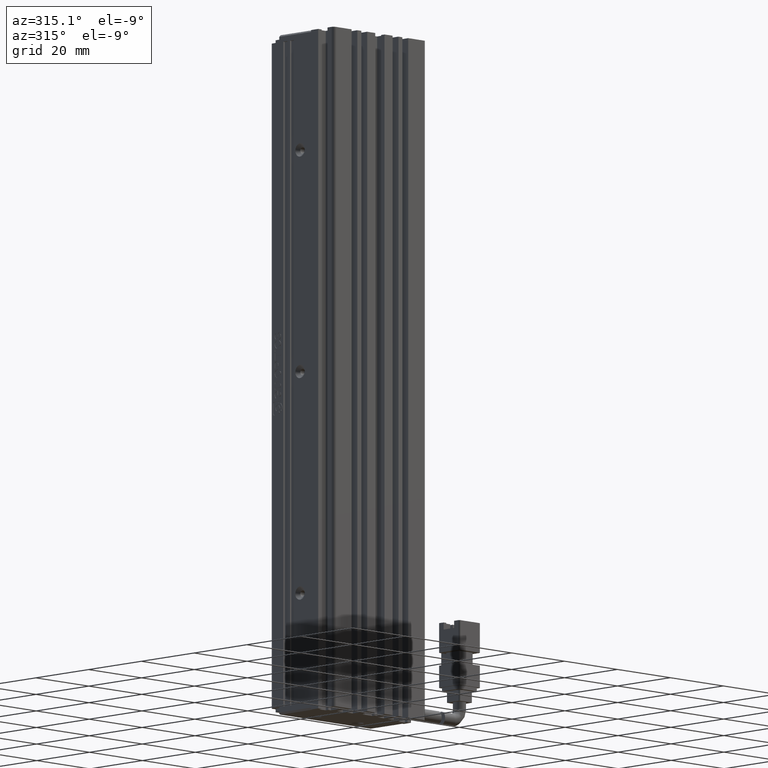
[diagram: clean part render]
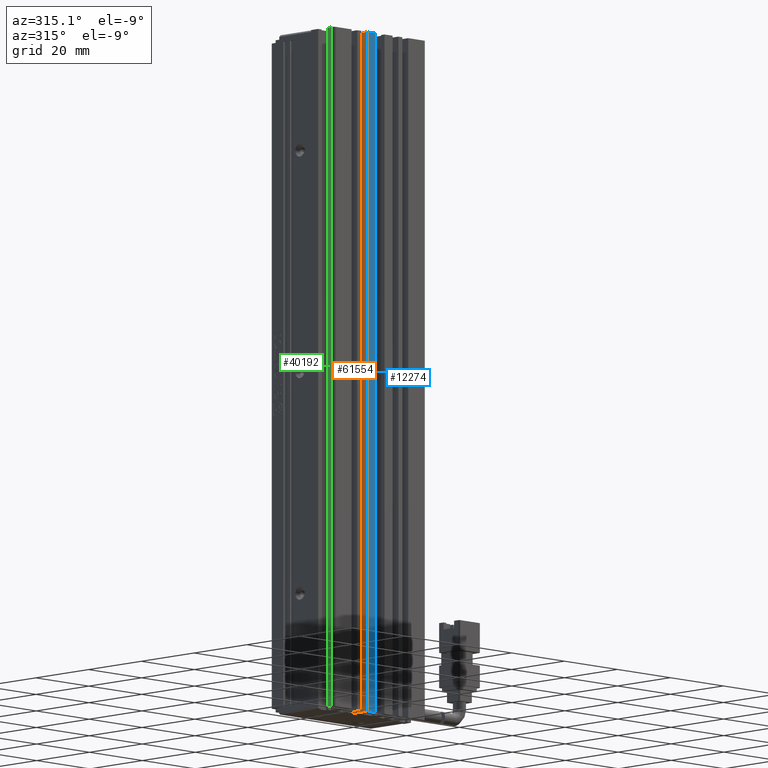
[diagram: same view with three faces highlighted in distinct colors, each labeled with its STEP entity id]
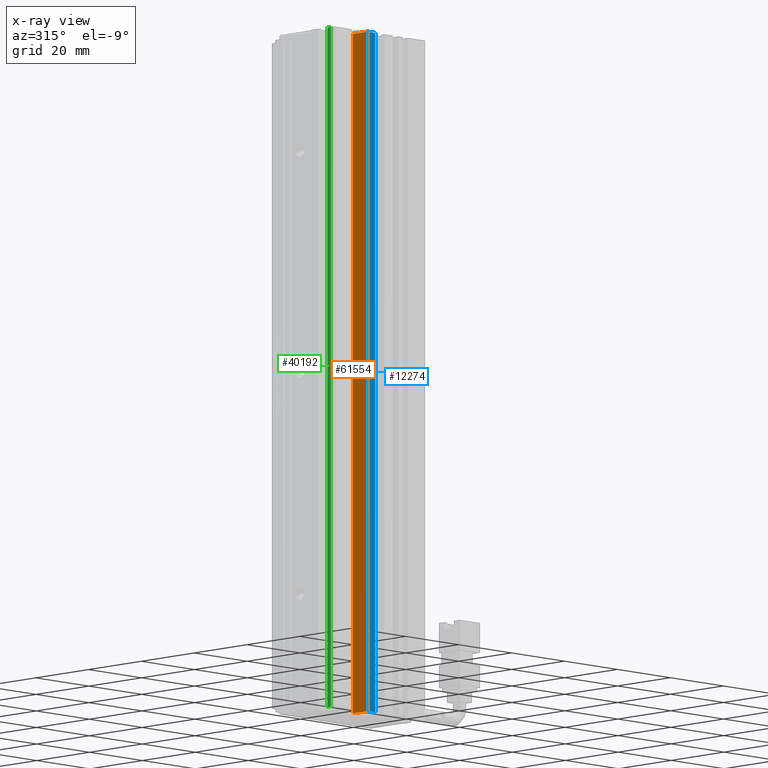
[diagram: x-ray of the same camera — body ghosted, the three highlighted faces saturated]
A machine part, auxiliary view with three faces highlighted in distinct colors.
The next image is the same camera in x-ray (body ghosted, the three faces saturated) — at least one of them is partly hidden behind the body in this view.
Their STEP definitions:

[orange] entity #61554 — the highlighted planar face has unit normal (-1, 0, 0).
#141 = CARTESIAN_POINT ( 'NONE',  ( 36.12537974683543500, 7.083797468354437600, -207.0000000000000300 ) ) ;
#1987 = LINE ( 'NONE', #141, #68669 ) ;
#3112 = CARTESIAN_POINT ( 'NONE',  ( 36.12537974683543500, 10.99073232304837000, -207.0000000000000300 ) ) ;
#6096 = ORIENTED_EDGE ( 'NONE', *, *, #53703, .T. ) ;
#6238 = ORIENTED_EDGE ( 'NONE', *, *, #25941, .T. ) ;
#6867 = VERTEX_POINT ( 'NONE', #65173 ) ;
#7102 = FACE_OUTER_BOUND ( 'NONE', #9268, .T. ) ;
#9268 = EDGE_LOOP ( 'NONE', ( #37538, #6238, #6096, #34782 ) ) ;
#14650 = CARTESIAN_POINT ( 'NONE',  ( 36.12537974683543500, 7.083797468354437600, -23.00000000000000700 ) ) ;
#15229 = CARTESIAN_POINT ( 'NONE',  ( 36.12537974683543500, 16.49073232304837000, -23.00000000000000700 ) ) ;
#15911 = EDGE_CURVE ( 'NONE', #58105, #56391, #35394, .T. ) ;
#15985 = DIRECTION ( 'NONE',  ( 0.0000000000000000000, -0.0000000000000000000, -1.000000000000000000 ) ) ;
#16100 = DIRECTION ( 'NONE',  ( -1.000000000000000000, 0.0000000000000000000, 0.0000000000000000000 ) ) ;
#19131 = VECTOR ( 'NONE', #26913, 1000.000000000000000 ) ;
#23712 = VECTOR ( 'NONE', #15985, 1000.000000000000000 ) ;
#25941 = EDGE_CURVE ( 'NONE', #58105, #6867, #54297, .T. ) ;
#26913 = DIRECTION ( 'NONE',  ( -0.0000000000000000000, -1.000000000000000000, 0.0000000000000000000 ) ) ;
#28476 = CARTESIAN_POINT ( 'NONE',  ( 36.12537974683543500, 10.99073232304837000, -23.00000000000000700 ) ) ;
#30978 = CARTESIAN_POINT ( 'NONE',  ( 36.12537974683543500, 16.49073232304837000, -23.00000000000000700 ) ) ;
#34535 = PLANE ( 'NONE',  #41229 ) ;
#34782 = ORIENTED_EDGE ( 'NONE', *, *, #73462, .F. ) ;
#35394 = LINE ( 'NONE', #14650, #19131 ) ;
#37538 = ORIENTED_EDGE ( 'NONE', *, *, #15911, .F. ) ;
#38062 = LINE ( 'NONE', #65551, #23712 ) ;
#38130 = VECTOR ( 'NONE', #70113, 1000.000000000000000 ) ;
#40682 = CARTESIAN_POINT ( 'NONE',  ( 36.12537974683543500, 7.083797468354437600, -23.00000000000000700 ) ) ;
#41229 = AXIS2_PLACEMENT_3D ( 'NONE', #40682, #16100, #58743 ) ;
#43026 = VERTEX_POINT ( 'NONE', #3112 ) ;
#49627 = DIRECTION ( 'NONE',  ( -0.0000000000000000000, -1.000000000000000000, 0.0000000000000000000 ) ) ;
#53703 = EDGE_CURVE ( 'NONE', #6867, #43026, #1987, .T. ) ;
#54297 = LINE ( 'NONE', #15229, #38130 ) ;
#56391 = VERTEX_POINT ( 'NONE', #28476 ) ;
#58105 = VERTEX_POINT ( 'NONE', #30978 ) ;
#58743 = DIRECTION ( 'NONE',  ( 0.0000000000000000000, 0.0000000000000000000, 1.000000000000000000 ) ) ;
#61554 = ADVANCED_FACE ( 'NONE', ( #7102 ), #34535, .T. ) ;
#65173 = CARTESIAN_POINT ( 'NONE',  ( 36.12537974683543500, 16.49073232304837000, -207.0000000000000300 ) ) ;
#65551 = CARTESIAN_POINT ( 'NONE',  ( 36.12537974683543500, 10.99073232304837000, -23.00000000000000700 ) ) ;
#68669 = VECTOR ( 'NONE', #49627, 1000.000000000000000 ) ;
#70113 = DIRECTION ( 'NONE',  ( -0.0000000000000000000, -0.0000000000000000000, -1.000000000000000000 ) ) ;
#73462 = EDGE_CURVE ( 'NONE', #56391, #43026, #38062, .T. ) ;

[blue] entity #12274 — the highlighted planar face has unit normal (0, -1, 0).
#1162 = EDGE_CURVE ( 'NONE', #65183, #12018, #78027, .T. ) ;
#2547 = ORIENTED_EDGE ( 'NONE', *, *, #1162, .T. ) ;
#3112 = CARTESIAN_POINT ( 'NONE',  ( 36.12537974683543500, 10.99073232304837000, -207.0000000000000300 ) ) ;
#6153 = VECTOR ( 'NONE', #36179, 1000.000000000000000 ) ;
#12018 = VERTEX_POINT ( 'NONE', #19708 ) ;
#12274 = ADVANCED_FACE ( 'NONE', ( #31183 ), #53345, .T. ) ;
#14853 = EDGE_LOOP ( 'NONE', ( #41390, #76842, #78434, #2547 ) ) ;
#15985 = DIRECTION ( 'NONE',  ( 0.0000000000000000000, -0.0000000000000000000, -1.000000000000000000 ) ) ;
#19708 = CARTESIAN_POINT ( 'NONE',  ( 39.17537974683542500, 10.99073232304837000, -23.00000000000000700 ) ) ;
#20538 = EDGE_CURVE ( 'NONE', #43026, #65183, #67113, .T. ) ;
#23712 = VECTOR ( 'NONE', #15985, 1000.000000000000000 ) ;
#27316 = CARTESIAN_POINT ( 'NONE',  ( 39.17537974683542500, 10.99073232304837000, -23.00000000000000700 ) ) ;
#28476 = CARTESIAN_POINT ( 'NONE',  ( 36.12537974683543500, 10.99073232304837000, -23.00000000000000700 ) ) ;
#31183 = FACE_OUTER_BOUND ( 'NONE', #14853, .T. ) ;
#33649 = DIRECTION ( 'NONE',  ( -0.0000000000000000000, 0.0000000000000000000, 1.000000000000000000 ) ) ;
#35249 = VECTOR ( 'NONE', #33649, 1000.000000000000000 ) ;
#35429 = AXIS2_PLACEMENT_3D ( 'NONE', #41102, #71684, #35781 ) ;
#35781 = DIRECTION ( 'NONE',  ( 0.0000000000000000000, -0.0000000000000000000, -1.000000000000000000 ) ) ;
#36179 = DIRECTION ( 'NONE',  ( 1.000000000000000000, 0.0000000000000000000, 0.0000000000000000000 ) ) ;
#38062 = LINE ( 'NONE', #65551, #23712 ) ;
#38842 = DIRECTION ( 'NONE',  ( 1.000000000000000000, 0.0000000000000000000, 0.0000000000000000000 ) ) ;
#41102 = CARTESIAN_POINT ( 'NONE',  ( 40.92537974683542500, 10.99073232304837000, -23.00000000000000700 ) ) ;
#41390 = ORIENTED_EDGE ( 'NONE', *, *, #59778, .F. ) ;
#43026 = VERTEX_POINT ( 'NONE', #3112 ) ;
#45234 = LINE ( 'NONE', #68862, #77580 ) ;
#53345 = PLANE ( 'NONE',  #35429 ) ;
#56391 = VERTEX_POINT ( 'NONE', #28476 ) ;
#59778 = EDGE_CURVE ( 'NONE', #56391, #12018, #45234, .T. ) ;
#63532 = CARTESIAN_POINT ( 'NONE',  ( 39.17537974683542500, 10.99073232304837000, -207.0000000000000300 ) ) ;
#65183 = VERTEX_POINT ( 'NONE', #63532 ) ;
#65551 = CARTESIAN_POINT ( 'NONE',  ( 36.12537974683543500, 10.99073232304837000, -23.00000000000000700 ) ) ;
#67113 = LINE ( 'NONE', #72593, #6153 ) ;
#68862 = CARTESIAN_POINT ( 'NONE',  ( 40.92537974683542500, 10.99073232304837000, -23.00000000000000700 ) ) ;
#71684 = DIRECTION ( 'NONE',  ( 0.0000000000000000000, -1.000000000000000000, 0.0000000000000000000 ) ) ;
#72593 = CARTESIAN_POINT ( 'NONE',  ( 40.92537974683542500, 10.99073232304837000, -207.0000000000000300 ) ) ;
#73462 = EDGE_CURVE ( 'NONE', #56391, #43026, #38062, .T. ) ;
#76842 = ORIENTED_EDGE ( 'NONE', *, *, #73462, .T. ) ;
#77580 = VECTOR ( 'NONE', #38842, 1000.000000000000000 ) ;
#78027 = LINE ( 'NONE', #27316, #35249 ) ;
#78434 = ORIENTED_EDGE ( 'NONE', *, *, #20538, .T. ) ;

[green] entity #40192 — the highlighted planar face has unit normal (-1, -0, 0).
#1054 = CARTESIAN_POINT ( 'NONE',  ( 23.42537974683541800, 13.29073232304837200, -207.0000000000000300 ) ) ;
#1860 = VECTOR ( 'NONE', #8283, 1000.000000000000000 ) ;
#3055 = CARTESIAN_POINT ( 'NONE',  ( 23.42537974683543600, 7.083797468354391400, -23.00000000000000700 ) ) ;
#4790 = EDGE_CURVE ( 'NONE', #19540, #46251, #27960, .T. ) ;
#7728 = DIRECTION ( 'NONE',  ( -0.0000000000000000000, -0.0000000000000000000, -1.000000000000000000 ) ) ;
#8283 = DIRECTION ( 'NONE',  ( -0.0000000000000000000, -0.0000000000000000000, -1.000000000000000000 ) ) ;
#8705 = CARTESIAN_POINT ( 'NONE',  ( 23.42537974683542100, 11.99073232304837000, -207.0000000000000300 ) ) ;
#9667 = DIRECTION ( 'NONE',  ( -2.668805347656621400E-015, 1.000000000000000000, -0.0000000000000000000 ) ) ;
#10128 = EDGE_CURVE ( 'NONE', #19540, #22209, #34246, .T. ) ;
#12295 = VECTOR ( 'NONE', #9667, 1000.000000000000000 ) ;
#14184 = EDGE_CURVE ( 'NONE', #22209, #32704, #33095, .T. ) ;
#14676 = CARTESIAN_POINT ( 'NONE',  ( 23.42537974683542500, 11.99073232304837000, -23.00000000000000700 ) ) ;
#15317 = ORIENTED_EDGE ( 'NONE', *, *, #14184, .T. ) ;
#18717 = VECTOR ( 'NONE', #7728, 1000.000000000000000 ) ;
#19540 = VERTEX_POINT ( 'NONE', #53902 ) ;
#19690 = CARTESIAN_POINT ( 'NONE',  ( 23.42537974683541800, 13.29073232304837200, -23.00000000000000700 ) ) ;
#20738 = ORIENTED_EDGE ( 'NONE', *, *, #36878, .T. ) ;
#22209 = VERTEX_POINT ( 'NONE', #67945 ) ;
#25137 = EDGE_LOOP ( 'NONE', ( #72918, #15317, #20738, #62096 ) ) ;
#27960 = LINE ( 'NONE', #14676, #1860 ) ;
#31351 = AXIS2_PLACEMENT_3D ( 'NONE', #45021, #44514, #32799 ) ;
#32704 = VERTEX_POINT ( 'NONE', #1054 ) ;
#32799 = DIRECTION ( 'NONE',  ( 2.668805347656621400E-015, -1.000000000000000000, 0.0000000000000000000 ) ) ;
#33095 = LINE ( 'NONE', #19690, #18717 ) ;
#34246 = LINE ( 'NONE', #3055, #12295 ) ;
#36878 = EDGE_CURVE ( 'NONE', #32704, #46251, #51249, .T. ) ;
#37035 = FACE_OUTER_BOUND ( 'NONE', #25137, .T. ) ;
#38384 = PLANE ( 'NONE',  #31351 ) ;
#40192 = ADVANCED_FACE ( 'NONE', ( #37035 ), #38384, .T. ) ;
#44514 = DIRECTION ( 'NONE',  ( -1.000000000000000000, -2.668805347656621400E-015, 0.0000000000000000000 ) ) ;
#45021 = CARTESIAN_POINT ( 'NONE',  ( 23.42537974683543600, 7.083797468354391400, -23.00000000000000700 ) ) ;
#46251 = VERTEX_POINT ( 'NONE', #8705 ) ;
#50063 = CARTESIAN_POINT ( 'NONE',  ( 23.42537974683543600, 7.083797468354391400, -207.0000000000000300 ) ) ;
#51249 = LINE ( 'NONE', #50063, #65494 ) ;
#53902 = CARTESIAN_POINT ( 'NONE',  ( 23.42537974683542100, 11.99073232304837000, -23.00000000000000700 ) ) ;
#62096 = ORIENTED_EDGE ( 'NONE', *, *, #4790, .F. ) ;
#65494 = VECTOR ( 'NONE', #69455, 1000.000000000000000 ) ;
#67945 = CARTESIAN_POINT ( 'NONE',  ( 23.42537974683541800, 13.29073232304837200, -22.99999999999999300 ) ) ;
#69455 = DIRECTION ( 'NONE',  ( 2.668805347656621400E-015, -1.000000000000000000, 0.0000000000000000000 ) ) ;
#72918 = ORIENTED_EDGE ( 'NONE', *, *, #10128, .T. ) ;